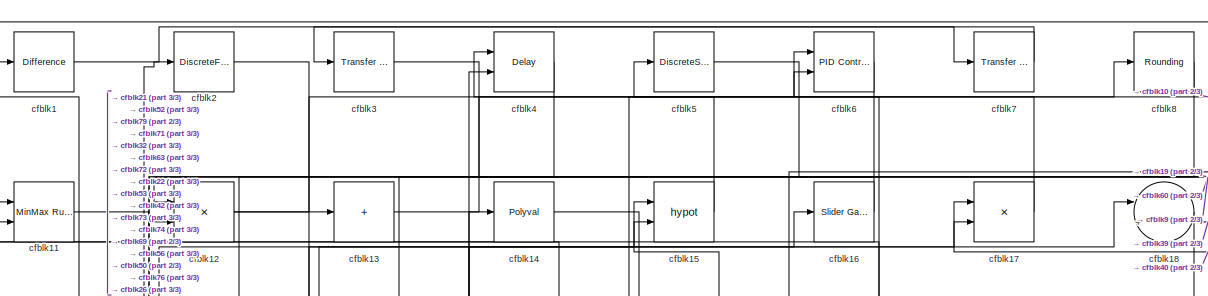
[diagram: root canvas - part 1/3, full width, top band]
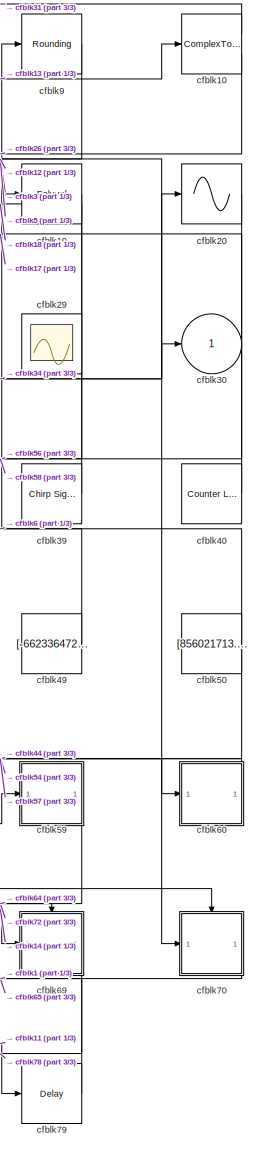
[diagram: root canvas - part 2/3, right side, full height]
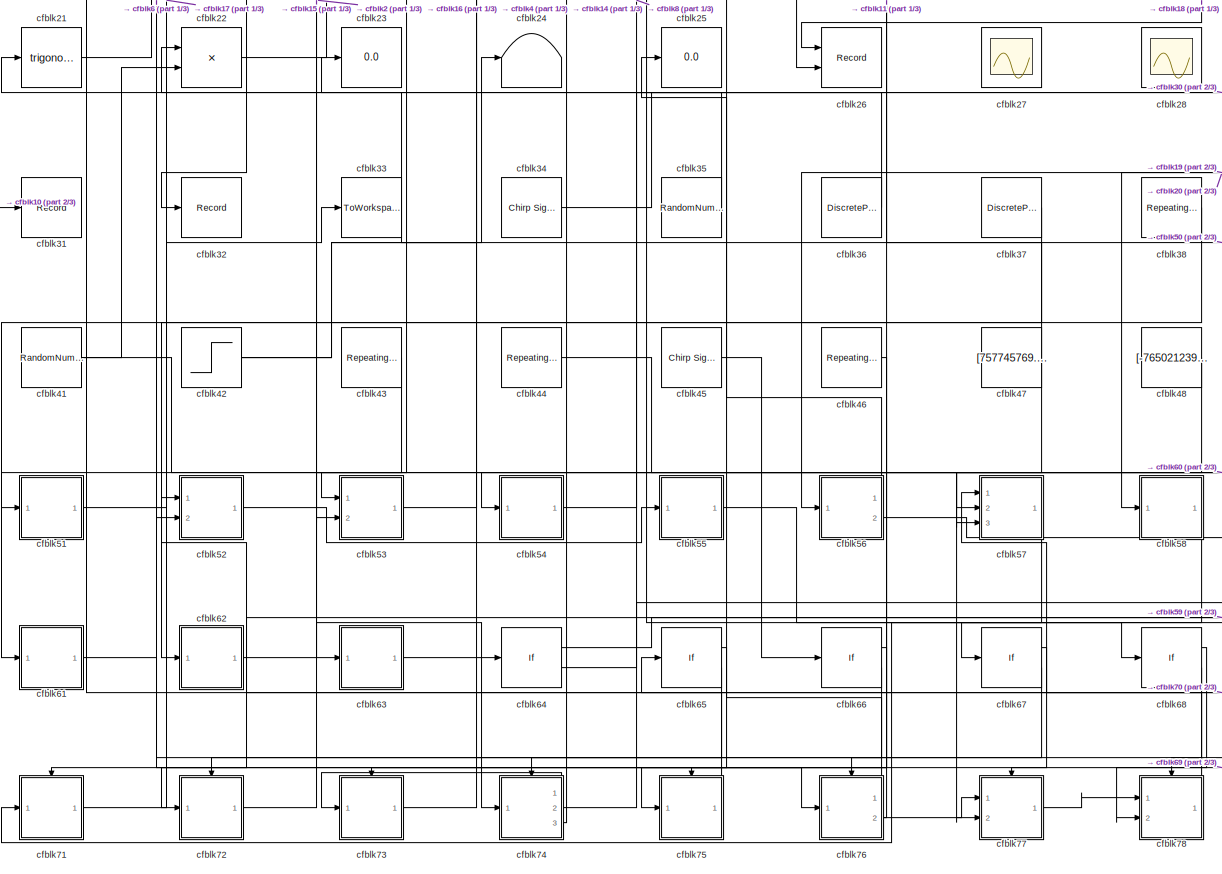
[diagram: root canvas - part 3/3, most of the canvas]
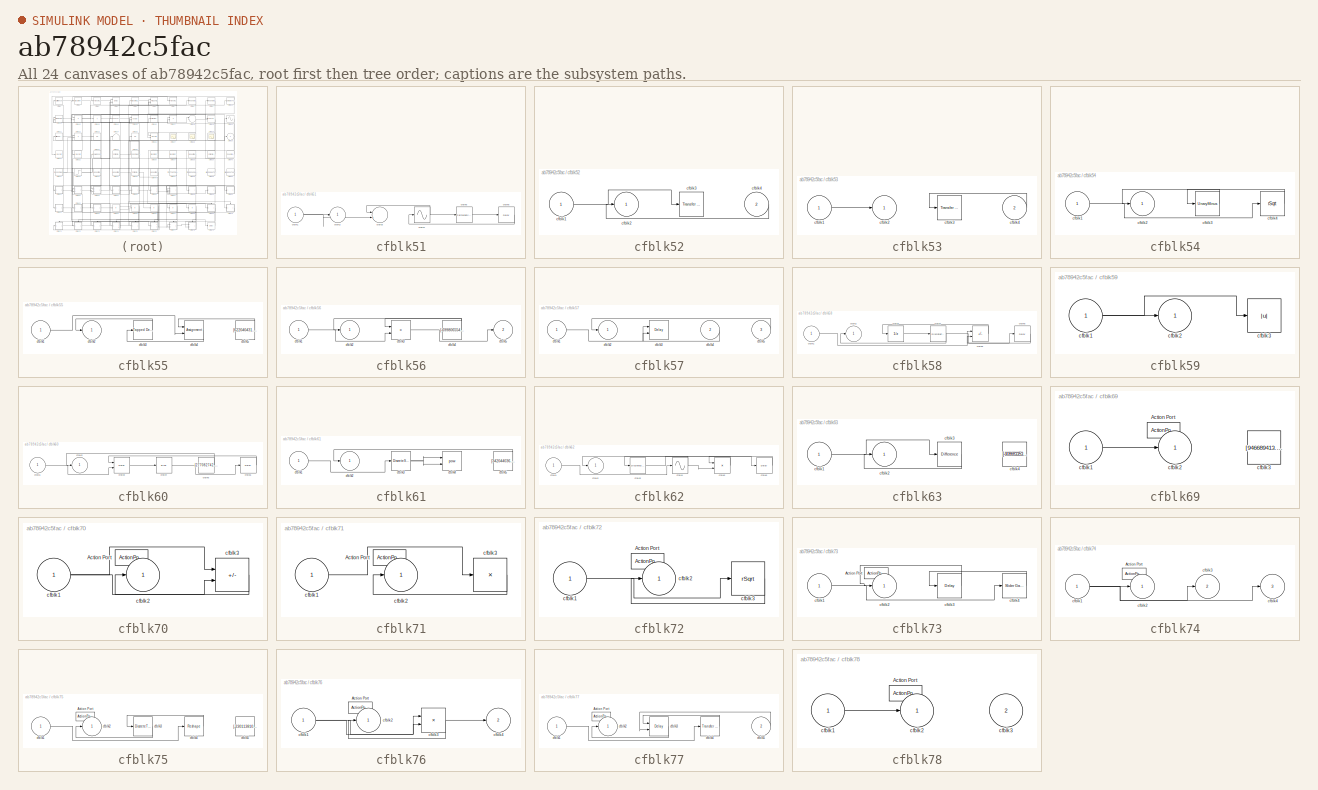
[diagram: thumbnail index - all 24 canvases of the model, root first then tree order]
MODEL slx_ab78942c5fac
KIND model
CONFIG AbsTol = auto
CONFIG EnableMultiTasking = off
CONFIG FixedStep = auto
CONFIG MaxStep = auto
CONFIG MinStep = auto
CONFIG RelTol = 1e-3
CONFIG SampleTimeConstraint = Unconstrained
CONFIG SolverName = VariableStepAuto
CONFIG StartTime = 0.0
CONFIG StopTime = 10.0
BLOCK [Reference] cfblk1  REF=simulink/Discrete/Difference
  Ports = [1, 1]
  SourceBlock = simulink/Discrete/Difference
  SourceProductBaseCode = SL
  SourceType = Difference
BLOCK [ComplexToMagnitudeAngle] cfblk10
  Ports = [1, 2]
BLOCK [Reference] cfblk11  REF=simulink/Math
Operations/MinMax
Running
Resettable
  Ports = [2, 1]
  SourceBlock = simulink/Math\nOperations/MinMax\nRunning\nResettable
  SourceProductBaseCode = SL
  SourceType = MinMax Running Resettable
BLOCK [Product] cfblk12
  Ports = [2, 1]
BLOCK [Sum] cfblk13
  IconShape = rectangular
  Inputs = +
  Ports = [1, 1]
BLOCK [Polyval] cfblk14
  Coefs = [ +2.081618890e-019, -1.441693666e-014, +4.719686976e-010, -8.536869453e-006, +1.621573104e-001, -8.087801117e+001 ]
BLOCK [Math] cfblk15
  Operator = hypot
  Ports = [2, 1]
BLOCK [Reference] cfblk16  REF=simulink/Math
Operations/Slider
Gain
  Ports = [1, 1]
  SourceBlock = simulink/Math\nOperations/Slider\nGain
  SourceProductBaseCode = SL
  SourceType = Slider Gain
BLOCK [Product] cfblk17
  Inputs = **
  Ports = [2, 1]
BLOCK [Sum] cfblk18
  Inputs = |++
  Ports = [2, 1]
BLOCK [Polyval] cfblk19
  Coefs = [ +2.081618890e-019, -1.441693666e-014, +4.719686976e-010, -8.536869453e-006, +1.621573104e-001, -8.087801117e+001 ]
BLOCK [DiscreteFir] cfblk2
  InputPortMap = u0
  OutputPortMap = o0
  Ports = [1, 1]
  SampleTime = 1
BLOCK [Sin] cfblk20
  Ports = [1, 1]
  SampleTime = 0
  TimeSource = Use external signal
BLOCK [Trigonometry] cfblk21
  Ports = [1, 1]
BLOCK [Product] cfblk22
  Ports = [2, 1]
BLOCK [Display] cfblk23
  Decimation = 1
  Ports = [1]
BLOCK [Terminator] cfblk24
BLOCK [Display] cfblk25
  Decimation = 1
  Ports = [1]
BLOCK [Record] cfblk26
  CompatibilityTag = XY
  FileSettingsInternal = {"entries":[{"content":{"excelSettings":{"content":{},"type":"Streamout.ExcelSettings"}},"type":"Streamout.FileSettingStorage","uuid":"1977bd0a-69a2-439d-8604-42371395555f"}],"packageUris":["http://schema.mathworks.com/mf0/streamout_blocks/R2020a"],"version":"1.0"}
  Layout = [1 1]
  Ports = [2]
  SignalsInternal = {"entries":[{"content":{"signals":[{"content":{"blockPath":["sampleModel12/cfblk26"],"channel":[],"dimensions":[1],"domain":"sampleModel12/cfblk26","lineColor":"#a2142f","plots":[1],"port":1,"sid":[""],"signalID":428,"signalName":"cfblk18"},"type":"RecordBlkView.Signal","uuid":"f3019e72-28ea-4570-a652-9e8685cbfb3c"},{"content":{"blockPath":["sampleModel12/cfblk26"],"channel":[],"dimensions":[1],"d...<+379ch>
  VisualizationBindings = {"xyplotplugin":{"info":[{"series":[{"bindingParametersList":[{"parameter":"X-Axis","signalID":428,"signalName":"cfblk18"},{"parameter":"Y-Axis","signalID":432,"signalName":"cfblk10:2"}],"seriesID":23501}],"subplotID":1}]}}
BLOCK [Scope] cfblk27
  Floating = on
  NumInputPorts = 1
  Ports = []
BLOCK [Scope] cfblk28
  Floating = on
  NumInputPorts = 1
  Ports = []
BLOCK [Scope] cfblk29
  Floating = on
  NumInputPorts = 1
  Ports = []
BLOCK [Reference] cfblk3  REF=simulink/Discrete/Transfer Fcn
Real Zero
  Ports = [1, 1]
  SourceBlock = simulink/Discrete/Transfer Fcn\nReal Zero
  SourceProductBaseCode = SL
  SourceType = Transfer Fcn Real Zero
BLOCK [Outport] cfblk30
BLOCK [Record] cfblk31
  FileSettingsInternal = {"entries":[{"content":{"excelSettings":{"content":{},"type":"Streamout.ExcelSettings"}},"type":"Streamout.FileSettingStorage","uuid":"da6b355c-110a-4d9d-8c85-11dfa9378df7"}],"packageUris":["http://schema.mathworks.com/mf0/streamout_blocks/R2020a"],"version":"1.0"}
  Ports = [1]
  SignalsInternal = {"entries":[{"content":{"signals":[{"content":{"blockPath":["sampleModel12/cfblk31"],"channel":[],"dimensions":[1],"domain":"sampleModel12/cfblk31","lineColor":"#edb120","plots":[1],"port":1,"sid":[""],"signalID":436,"signalName":"cfblk10:1"},"type":"RecordBlkView.Signal","uuid":"ae69bb2e-39ac-490d-996f-805b6f004b7c"}]},"type":"RecordBlkView.InputSignals","uuid":"de569a82-f94e-46d9-a337-50138a330f...<+96ch>
  VisualizationBindings = {"sparklinesplugin":{"info":[{"bindingParametersList":[],"subplotID":1}]}}
BLOCK [Record] cfblk32
  FileSettingsInternal = {"entries":[{"content":{"excelSettings":{"content":{},"type":"Streamout.ExcelSettings"}},"type":"Streamout.FileSettingStorage","uuid":"c9f7d570-c88d-4228-83d0-ca59f7ab4bdd"}],"packageUris":["http://schema.mathworks.com/mf0/streamout_blocks/R2020a"],"version":"1.0"}
  Ports = [1]
  SignalsInternal = {"entries":[{"content":{"signals":[{"content":{"blockPath":["sampleModel12/cfblk32"],"channel":[],"dimensions":[1],"domain":"sampleModel12/cfblk32","lineColor":"#7e2f8e","plots":[1],"port":1,"sid":[""],"signalID":440,"signalName":"cfblk8"},"type":"RecordBlkView.Signal","uuid":"cca8ab52-b53e-444e-b4d0-924eaea725a7"}]},"type":"RecordBlkView.InputSignals","uuid":"2acedad1-730a-4821-a658-abd68721b299"...<+93ch>
  VisualizationBindings = {"sparklinesplugin":{"info":[{"bindingParametersList":[],"subplotID":1}]}}
BLOCK [ToWorkspace] cfblk33
  FixptAsFi = on
  MaxDataPoints = inf
  Ports = [1]
  SampleTime = -1
  SaveFormat = Timeseries
  VariableName = excipmu
BLOCK [Reference] cfblk34  REF=simulink/Sources/Chirp Signal
  Ports = [0, 1]
  SourceBlock = simulink/Sources/Chirp Signal
  SourceProductBaseCode = SL
  SourceType = chirp
BLOCK [RandomNumber] cfblk35
  Mean = [-70273.489359]
  SampleTime = 0.1
  Seed = [633982548.000000]
  Variance = [65811.618122]
BLOCK [DiscretePulseGenerator] cfblk36
  Amplitude = [-541387497.068457]
  Period = [18222802.345042]
  PhaseDelay = [2.000000]
  Ports = [0, 1]
  PulseType = Time based
  PulseWidth = 5
BLOCK [DiscretePulseGenerator] cfblk37
  Amplitude = [-700785816.762518]
  Period = [20274740.571512]
  PhaseDelay = [9.000000]
  Ports = [0, 1]
  PulseType = Time based
  PulseWidth = 5
BLOCK [Reference] cfblk38  REF=simulink/Sources/Repeating
Sequence
  Ports = [0, 1]
  SourceBlock = simulink/Sources/Repeating\nSequence
  SourceProductBaseCode = SL
  SourceType = Repeating table
BLOCK [Reference] cfblk39  REF=simulink/Sources/Chirp Signal
  Ports = [0, 1]
  SourceBlock = simulink/Sources/Chirp Signal
  SourceProductBaseCode = SL
  SourceType = chirp
BLOCK [Delay] cfblk4
  InputPortMap = u0,e6
  Ports = [2, 1]
  SampleTime = 1
  ShowEnablePort = on
BLOCK [Reference] cfblk40  REF=simulink/Sources/Counter
Limited
  Ports = [0, 1]
  SourceBlock = simulink/Sources/Counter\nLimited
  SourceProductBaseCode = SL
  SourceType = Counter Limited
BLOCK [RandomNumber] cfblk41
  Mean = [72467.842296]
  SampleTime = 0.1
  Seed = [189010556.000000]
  Variance = [89640.490346]
BLOCK [Step] cfblk42
  After = [951414251.341264]
  Before = [882461875.746971]
  SampleTime = 0
  Time = [33.000000]
BLOCK [Reference] cfblk43  REF=simulink/Sources/Repeating
Sequence
Stair
  Ports = [0, 1]
  SourceBlock = simulink/Sources/Repeating\nSequence\nStair
  SourceProductBaseCode = SL
  SourceType = Repeating Sequence Stair
BLOCK [Reference] cfblk44  REF=simulink/Sources/Repeating
Sequence
Stair
  Ports = [0, 1]
  SourceBlock = simulink/Sources/Repeating\nSequence\nStair
  SourceProductBaseCode = SL
  SourceType = Repeating Sequence Stair
BLOCK [Reference] cfblk45  REF=simulink/Sources/Chirp Signal
  Ports = [0, 1]
  SourceBlock = simulink/Sources/Chirp Signal
  SourceProductBaseCode = SL
  SourceType = chirp
BLOCK [Reference] cfblk46  REF=simulink/Sources/Repeating
Sequence
Interpolated
  Ports = [0, 1]
  SourceBlock = simulink/Sources/Repeating\nSequence\nInterpolated
  SourceProductBaseCode = SL
  SourceType = Repeating Sequence Interpolated
BLOCK [Constant] cfblk47
  SampleTime = 1
  Value = [757745769.277047]
BLOCK [Constant] cfblk48
  SampleTime = 1
  Value = [-765021239.602186]
BLOCK [Constant] cfblk49
  SampleTime = 1
  Value = [-662336472.081228]
BLOCK [DiscreteStateSpace] cfblk5
BLOCK [Constant] cfblk50
  SampleTime = 1
  Value = [856021713.477478]
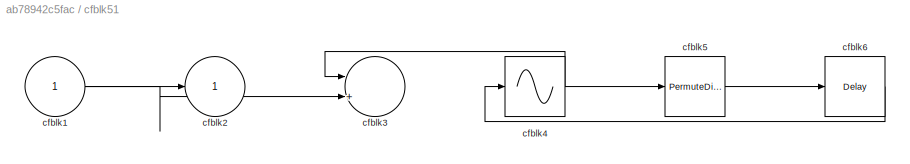
BLOCK [SubSystem] cfblk51
  Ports = [1, 1]
  RequestExecContextInheritance = off
BLOCK [Inport] cfblk51/cfblk1
BLOCK [Outport] cfblk51/cfblk2
BLOCK [Sum] cfblk51/cfblk3
  Inputs = |++
  Ports = [2, 1]
BLOCK [Sin] cfblk51/cfblk4
  Ports = [1, 1]
  SampleTime = 0
  TimeSource = Use external signal
BLOCK [PermuteDimensions] cfblk51/cfblk5
BLOCK [Delay] cfblk51/cfblk6
  InputPortMap = u0
  Ports = [1, 1]
  SampleTime = 1
BLOCK [SubSystem] cfblk52
  Ports = [2, 1]
  RequestExecContextInheritance = off
BLOCK [Inport] cfblk52/cfblk1
BLOCK [Outport] cfblk52/cfblk2
BLOCK [Reference] cfblk52/cfblk3  REF=simulink/Discrete/Transfer Fcn
First Order
  Ports = [1, 1]
  SourceBlock = simulink/Discrete/Transfer Fcn\nFirst Order
  SourceProductBaseCode = SL
  SourceType = First Order Transfer Fcn
BLOCK [Inport] cfblk52/cfblk4
  Port = 2
BLOCK [SubSystem] cfblk53
  Ports = [2, 1]
  RequestExecContextInheritance = off
BLOCK [Inport] cfblk53/cfblk1
BLOCK [Outport] cfblk53/cfblk2
BLOCK [Reference] cfblk53/cfblk3  REF=simulink/Discrete/Transfer Fcn
First Order
  Ports = [1, 1]
  SourceBlock = simulink/Discrete/Transfer Fcn\nFirst Order
  SourceProductBaseCode = SL
  SourceType = First Order Transfer Fcn
BLOCK [Inport] cfblk53/cfblk4
  Port = 2
BLOCK [SubSystem] cfblk54
  Ports = [1, 1]
  RequestExecContextInheritance = off
BLOCK [Inport] cfblk54/cfblk1
BLOCK [Outport] cfblk54/cfblk2
BLOCK [UnaryMinus] cfblk54/cfblk3
BLOCK [Sqrt] cfblk54/cfblk4
  AlgorithmType = Newton-Raphson
  Operator = rSqrt
BLOCK [SubSystem] cfblk55
  Ports = [1, 1]
  RequestExecContextInheritance = off
BLOCK [Inport] cfblk55/cfblk1
BLOCK [Outport] cfblk55/cfblk2
BLOCK [Reference] cfblk55/cfblk3  REF=simulink/Discrete/Tapped Delay
  Ports = [1, 1]
  SourceBlock = simulink/Discrete/Tapped Delay
  SourceProductBaseCode = SL
  SourceType = Tapped Delay Line
BLOCK [Assignment] cfblk55/cfblk4
  DiagnosticForDimensions = Warning
  IndexOptions = Index vector (dialog)
  Indices = 1
  OutputSizes = 1
  Ports = [2, 1]
BLOCK [Constant] cfblk55/cfblk5
  SampleTime = 1
  Value = [622040431.232919]
BLOCK [SubSystem] cfblk56
  Ports = [1, 2]
  RequestExecContextInheritance = off
BLOCK [Inport] cfblk56/cfblk1
BLOCK [Outport] cfblk56/cfblk2
BLOCK [Product] cfblk56/cfblk3
  Inputs = **
  Ports = [2, 1]
BLOCK [Constant] cfblk56/cfblk4
  SampleTime = 1
  Value = [-699806554.674733]
BLOCK [Outport] cfblk56/cfblk5
  Port = 2
BLOCK [SubSystem] cfblk57
  Ports = [3, 1]
  RequestExecContextInheritance = off
BLOCK [Inport] cfblk57/cfblk1
BLOCK [Outport] cfblk57/cfblk2
BLOCK [Delay] cfblk57/cfblk3
  DelayLengthSource = Input port
  InputPortMap = u0,p1
  Ports = [2, 1]
  SampleTime = 1
BLOCK [Inport] cfblk57/cfblk4
  Port = 2
BLOCK [Inport] cfblk57/cfblk5
  Port = 3
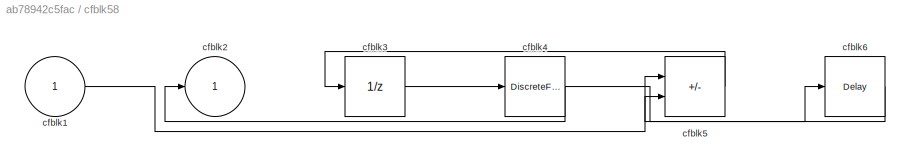
BLOCK [SubSystem] cfblk58
  Ports = [1, 1]
  RequestExecContextInheritance = off
BLOCK [Inport] cfblk58/cfblk1
BLOCK [Outport] cfblk58/cfblk2
BLOCK [UnitDelay] cfblk58/cfblk3
  HasFrameUpgradeWarning = on
BLOCK [DiscreteFilter] cfblk58/cfblk4
  InputPortMap = u0
  Ports = [1, 1]
  SampleTime = 1
BLOCK [Sum] cfblk58/cfblk5
  IconShape = rectangular
  Inputs = +-
  Ports = [2, 1]
BLOCK [Delay] cfblk58/cfblk6
  InputPortMap = u0
  Ports = [1, 1]
  SampleTime = 1
BLOCK [SubSystem] cfblk59
  Ports = [1, 1]
  RequestExecContextInheritance = off
BLOCK [Inport] cfblk59/cfblk1
BLOCK [Outport] cfblk59/cfblk2
BLOCK [Abs] cfblk59/cfblk3
  SaturateOnIntegerOverflow = off
BLOCK [Reference] cfblk6  REF=slpidlib/PID Controller (2DOF)
  Ports = [2, 1]
  SourceBlock = slpidlib/PID Controller (2DOF)
  SourceProductBaseCode = SL
  SourceType = PID 2dof
BLOCK [SubSystem] cfblk60
  Ports = [1, 1]
  RequestExecContextInheritance = off
BLOCK [Inport] cfblk60/cfblk1
BLOCK [Outport] cfblk60/cfblk2
BLOCK [Delay] cfblk60/cfblk3
  DelayLengthSource = Input port
  InputPortMap = u0,p1
  Ports = [2, 1]
  SampleTime = 1
BLOCK [Bias] cfblk60/cfblk4
  Bias = [486427548.401634]
  SaturateOnIntegerOverflow = off
BLOCK [Constant] cfblk60/cfblk5
  SampleTime = 1
  Value = [277082742.678842]
BLOCK [Delay] cfblk60/cfblk6
  InputPortMap = u0
  Ports = [1, 1]
  SampleTime = 1
BLOCK [SubSystem] cfblk61
  Ports = [1, 1]
  RequestExecContextInheritance = off
BLOCK [Inport] cfblk61/cfblk1
BLOCK [Outport] cfblk61/cfblk2
BLOCK [DiscreteStateSpace] cfblk61/cfblk3
BLOCK [Math] cfblk61/cfblk4
  Operator = pow
  Ports = [2, 1]
BLOCK [Constant] cfblk61/cfblk5
  SampleTime = 1
  Value = [342044036.566696]
BLOCK [SubSystem] cfblk62
  Ports = [1, 1]
  RequestExecContextInheritance = off
BLOCK [Inport] cfblk62/cfblk1
BLOCK [Outport] cfblk62/cfblk2
BLOCK [DiscreteStateSpace] cfblk62/cfblk3
BLOCK [Sin] cfblk62/cfblk4
  Ports = [1, 1]
  SampleTime = 0
  TimeSource = Use external signal
BLOCK [Product] cfblk62/cfblk5
  Ports = [2, 1]
BLOCK [Delay] cfblk62/cfblk6
  InputPortMap = u0
  Ports = [1, 1]
  SampleTime = 1
BLOCK [SubSystem] cfblk63
  Ports = [1, 1]
  RequestExecContextInheritance = off
BLOCK [Inport] cfblk63/cfblk1
BLOCK [Outport] cfblk63/cfblk2
BLOCK [Reference] cfblk63/cfblk3  REF=simulink/Discrete/Difference
  Ports = [1, 1]
  SourceBlock = simulink/Discrete/Difference
  SourceProductBaseCode = SL
  SourceType = Difference
BLOCK [Constant] cfblk63/cfblk4
  SampleTime = 1
  Value = [-908683353.045234]
BLOCK [If] cfblk64
  IfExpression = u1 >= 0
  Ports = [1, 2]
  SampleTime = 1
BLOCK [If] cfblk65
  IfExpression = u1 >= 0
  Ports = [1, 2]
  SampleTime = 1
BLOCK [If] cfblk66
  IfExpression = u1 >= 0
  Ports = [1, 2]
  SampleTime = 1
BLOCK [If] cfblk67
  IfExpression = u1 >= 0
  Ports = [1, 2]
  SampleTime = 1
BLOCK [If] cfblk68
  IfExpression = u1 >= 0
  Ports = [1, 2]
  SampleTime = 1
BLOCK [SubSystem] cfblk69
  Ports = [1, 1, 0, 0, 0, 0, 0, 1]
  RequestExecContextInheritance = off
  TreatAsAtomicUnit = on
BLOCK [ActionPort] cfblk69/Action Port
  ActionPortLabel = if(u1 >= 0)
BLOCK [Inport] cfblk69/cfblk1
BLOCK [Outport] cfblk69/cfblk2
BLOCK [Constant] cfblk69/cfblk3
  SampleTime = 1
  Value = [946689413.441740]
BLOCK [Reference] cfblk7  REF=simulink/Discrete/Transfer Fcn
First Order
  Ports = [1, 1]
  SourceBlock = simulink/Discrete/Transfer Fcn\nFirst Order
  SourceProductBaseCode = SL
  SourceType = First Order Transfer Fcn
BLOCK [SubSystem] cfblk70
  Ports = [1, 1, 0, 0, 0, 0, 0, 1]
  RequestExecContextInheritance = off
  TreatAsAtomicUnit = on
BLOCK [ActionPort] cfblk70/Action Port
  ActionPortLabel = else
BLOCK [Inport] cfblk70/cfblk1
BLOCK [Outport] cfblk70/cfblk2
BLOCK [Sum] cfblk70/cfblk3
  IconShape = rectangular
  Inputs = --
  Ports = [2, 1]
BLOCK [SubSystem] cfblk71
  Ports = [1, 1, 0, 0, 0, 0, 0, 1]
  RequestExecContextInheritance = off
  TreatAsAtomicUnit = on
BLOCK [ActionPort] cfblk71/Action Port
  ActionPortLabel = if(u1 >= 0)
BLOCK [Inport] cfblk71/cfblk1
BLOCK [Outport] cfblk71/cfblk2
BLOCK [Product] cfblk71/cfblk3
  Inputs = *
  Ports = [1, 1]
BLOCK [SubSystem] cfblk72
  Ports = [1, 1, 0, 0, 0, 0, 0, 1]
  RequestExecContextInheritance = off
  TreatAsAtomicUnit = on
BLOCK [ActionPort] cfblk72/Action Port
  ActionPortLabel = else
BLOCK [Inport] cfblk72/cfblk1
BLOCK [Outport] cfblk72/cfblk2
BLOCK [Sqrt] cfblk72/cfblk3
  AlgorithmType = Newton-Raphson
  Operator = rSqrt
BLOCK [SubSystem] cfblk73
  Ports = [1, 1, 0, 0, 0, 0, 0, 1]
  RequestExecContextInheritance = off
  TreatAsAtomicUnit = on
BLOCK [ActionPort] cfblk73/Action Port
  ActionPortLabel = if(u1 >= 0)
BLOCK [Inport] cfblk73/cfblk1
BLOCK [Outport] cfblk73/cfblk2
BLOCK [Delay] cfblk73/cfblk3
  InputPortMap = u0
  Ports = [1, 1]
BLOCK [Reference] cfblk73/cfblk4  REF=simulink/Math
Operations/Slider
Gain
  Ports = [1, 1]
  SourceBlock = simulink/Math\nOperations/Slider\nGain
  SourceProductBaseCode = SL
  SourceType = Slider Gain
BLOCK [SubSystem] cfblk74
  Ports = [1, 3, 0, 0, 0, 0, 0, 1]
  RequestExecContextInheritance = off
  TreatAsAtomicUnit = on
BLOCK [ActionPort] cfblk74/Action Port
  ActionPortLabel = else
BLOCK [Inport] cfblk74/cfblk1
BLOCK [Outport] cfblk74/cfblk2
BLOCK [Outport] cfblk74/cfblk3
  Port = 2
BLOCK [Outport] cfblk74/cfblk4
  Port = 3
BLOCK [SubSystem] cfblk75
  Ports = [1, 1, 0, 0, 0, 0, 0, 1]
  RequestExecContextInheritance = off
  TreatAsAtomicUnit = on
BLOCK [ActionPort] cfblk75/Action Port
  ActionPortLabel = if(u1 >= 0)
BLOCK [Inport] cfblk75/cfblk1
BLOCK [Outport] cfblk75/cfblk2
BLOCK [DiscreteTransferFcn] cfblk75/cfblk3
  InputPortMap = u0
  Ports = [1, 1]
BLOCK [Reshape] cfblk75/cfblk4
  Ports = [1, 1]
BLOCK [Constant] cfblk75/cfblk5
  SampleTime = 1
  Value = [-230113810.064252]
BLOCK [SubSystem] cfblk76
  Ports = [1, 2, 0, 0, 0, 0, 0, 1]
  RequestExecContextInheritance = off
  TreatAsAtomicUnit = on
BLOCK [ActionPort] cfblk76/Action Port
  ActionPortLabel = else
BLOCK [Inport] cfblk76/cfblk1
BLOCK [Outport] cfblk76/cfblk2
BLOCK [Product] cfblk76/cfblk3
  Inputs = **
  Ports = [2, 1]
BLOCK [Outport] cfblk76/cfblk4
  Port = 2
BLOCK [SubSystem] cfblk77
  Ports = [2, 1, 0, 0, 0, 0, 0, 1]
  RequestExecContextInheritance = off
  TreatAsAtomicUnit = on
BLOCK [ActionPort] cfblk77/Action Port
  ActionPortLabel = if(u1 >= 0)
BLOCK [Inport] cfblk77/cfblk1
BLOCK [Outport] cfblk77/cfblk2
BLOCK [Delay] cfblk77/cfblk3
  DelayLengthSource = Input port
  InputPortMap = u0,p1
  Ports = [2, 1]
BLOCK [Reference] cfblk77/cfblk4  REF=simulink/Discrete/Transfer Fcn
First Order
  Ports = [1, 1]
  SourceBlock = simulink/Discrete/Transfer Fcn\nFirst Order
  SourceProductBaseCode = SL
  SourceType = First Order Transfer Fcn
BLOCK [Inport] cfblk77/cfblk5
  Port = 2
BLOCK [SubSystem] cfblk78
  Ports = [2, 1, 0, 0, 0, 0, 0, 1]
  RequestExecContextInheritance = off
  TreatAsAtomicUnit = on
BLOCK [ActionPort] cfblk78/Action Port
  ActionPortLabel = else
BLOCK [Inport] cfblk78/cfblk1
BLOCK [Outport] cfblk78/cfblk2
BLOCK [Inport] cfblk78/cfblk3
  Port = 2
BLOCK [Delay] cfblk79
  InputPortMap = u0
  Ports = [1, 1]
  SampleTime = 1
BLOCK [Rounding] cfblk8
BLOCK [Rounding] cfblk9
LINE cfblk10:1 -> cfblk31:1
LINE cfblk10:2 -> cfblk26:2
LINE cfblk11:1 -> cfblk79:1
NET cfblk12:1 -> cfblk13:1, cfblk6:2
LINE cfblk13:1 -> cfblk10:1
LINE cfblk14:1 -> cfblk69:1
LINE cfblk15:1 -> cfblk4:1
LINE cfblk16:1 -> cfblk12:1
LINE cfblk17:1 -> cfblk5:1
LINE cfblk18:1 -> cfblk26:1
LINE cfblk19:1 -> cfblk58:1
LINE cfblk1:1 -> cfblk7:1
LINE cfblk20:1 -> cfblk56:1
LINE cfblk21:1 -> cfblk2:1
LINE cfblk22:1 -> cfblk16:1
LINE cfblk2:1 -> cfblk63:1
LINE cfblk34:1 -> cfblk20:1
LINE cfblk35:1 -> cfblk22:1
LINE cfblk36:1 -> cfblk21:1
LINE cfblk37:1 -> cfblk51:1
LINE cfblk38:1 -> cfblk62:1
LINE cfblk39:1 -> cfblk18:2
LINE cfblk3:1 -> cfblk19:1
LINE cfblk40:1 -> cfblk17:2
NET cfblk41:1 -> cfblk22:2, cfblk77:2
NET cfblk42:1 -> cfblk24:1, cfblk4:2
LINE cfblk43:1 -> cfblk61:1
LINE cfblk44:1 -> cfblk70:1
LINE cfblk45:1 -> cfblk66:1
LINE cfblk46:1 -> cfblk75:1
NET cfblk47:1 -> cfblk23:1, cfblk57:3
LINE cfblk48:1 -> cfblk53:2
LINE cfblk49:1 -> cfblk9:1
LINE cfblk4:1 -> cfblk53:1
NET cfblk50:1 -> cfblk57:2, cfblk6:1
NET cfblk51/cfblk1:1 -> cfblk51/cfblk2:1, cfblk51/cfblk3:2
NET cfblk51/cfblk4:1 -> cfblk51/cfblk3:1, cfblk51/cfblk5:1
LINE cfblk51/cfblk5:1 -> cfblk51/cfblk6:1
LINE cfblk51/cfblk6:1 -> cfblk51/cfblk4:1
LINE cfblk51:1 -> cfblk33:1
LINE cfblk52/cfblk1:1 -> cfblk52/cfblk3:1
LINE cfblk52/cfblk4:1 -> cfblk52/cfblk2:1
LINE cfblk52:1 -> cfblk55:1
LINE cfblk53/cfblk1:1 -> cfblk53/cfblk2:1
LINE cfblk53/cfblk4:1 -> cfblk53/cfblk3:1
LINE cfblk53:1 -> cfblk14:1
LINE cfblk54/cfblk1:1 -> cfblk54/cfblk4:1
LINE cfblk54/cfblk3:1 -> cfblk54/cfblk2:1
LINE cfblk54/cfblk4:1 -> cfblk54/cfblk3:1
LINE cfblk54:1 -> cfblk30:1
LINE cfblk55/cfblk1:1 -> cfblk55/cfblk4:2
LINE cfblk55/cfblk3:1 -> cfblk55/cfblk2:1
LINE cfblk55/cfblk4:1 -> cfblk55/cfblk3:1
LINE cfblk55/cfblk5:1 -> cfblk55/cfblk4:1
LINE cfblk55:1 -> cfblk68:1
LINE cfblk56/cfblk1:1 -> cfblk56/cfblk3:2
LINE cfblk56/cfblk3:1 -> cfblk56/cfblk5:1
NET cfblk56/cfblk4:1 -> cfblk56/cfblk2:1, cfblk56/cfblk3:1
LINE cfblk56:1 -> cfblk15:2
LINE cfblk56:2 -> cfblk59:1
LINE cfblk57/cfblk1:1 -> cfblk57/cfblk3:1
LINE cfblk57/cfblk4:1 -> cfblk57/cfblk3:2
LINE cfblk57/cfblk5:1 -> cfblk57/cfblk2:1
LINE cfblk57:1 -> cfblk71:1
LINE cfblk58/cfblk1:1 -> cfblk58/cfblk5:1
LINE cfblk58/cfblk3:1 -> cfblk58/cfblk4:1
NET cfblk58/cfblk4:1 -> cfblk58/cfblk2:1, cfblk58/cfblk6:1
LINE cfblk58/cfblk5:1 -> cfblk58/cfblk3:1
LINE cfblk58/cfblk6:1 -> cfblk58/cfblk5:2
LINE cfblk58:1 -> cfblk67:1
NET cfblk59/cfblk1:1 -> cfblk59/cfblk2:1, cfblk59/cfblk3:1
LINE cfblk59:1 -> cfblk72:1
LINE cfblk5:1 -> cfblk60:1
LINE cfblk60/cfblk1:1 -> cfblk60/cfblk3:2
LINE cfblk60/cfblk3:1 -> cfblk60/cfblk4:1
LINE cfblk60/cfblk4:1 -> cfblk60/cfblk6:1
LINE cfblk60/cfblk5:1 -> cfblk60/cfblk2:1
LINE cfblk60/cfblk6:1 -> cfblk60/cfblk3:1
LINE cfblk60:1 -> cfblk54:1
LINE cfblk61/cfblk1:1 -> cfblk61/cfblk3:1
NET cfblk61/cfblk3:1 -> cfblk61/cfblk4:1, cfblk61/cfblk4:2
LINE cfblk61/cfblk5:1 -> cfblk61/cfblk2:1
LINE cfblk61:1 -> cfblk76:1
LINE cfblk62/cfblk1:1 -> cfblk62/cfblk4:1
LINE cfblk62/cfblk3:1 -> cfblk62/cfblk6:1
NET cfblk62/cfblk4:1 -> cfblk62/cfblk2:1, cfblk62/cfblk5:2
LINE cfblk62/cfblk5:1 -> cfblk62/cfblk3:1
LINE cfblk62/cfblk6:1 -> cfblk62/cfblk5:1
LINE cfblk62:1 -> cfblk64:1
LINE cfblk63/cfblk1:1 -> cfblk63/cfblk3:1
LINE cfblk63/cfblk3:1 -> cfblk63/cfblk2:1
LINE cfblk63:1 -> cfblk74:1
LINE cfblk64:1 -> cfblk69:ifaction
LINE cfblk64:2 -> cfblk70:ifaction
LINE cfblk65:1 -> cfblk71:ifaction
LINE cfblk65:2 -> cfblk72:ifaction
LINE cfblk66:1 -> cfblk73:ifaction
LINE cfblk66:2 -> cfblk74:ifaction
LINE cfblk67:1 -> cfblk75:ifaction
LINE cfblk67:2 -> cfblk76:ifaction
LINE cfblk68:1 -> cfblk77:ifaction
LINE cfblk68:2 -> cfblk78:ifaction
LINE cfblk69/cfblk1:1 -> cfblk69/cfblk2:1
LINE cfblk69:1 -> cfblk78:2
LINE cfblk6:1 -> cfblk52:2
NET cfblk70/cfblk1:1 -> cfblk70/cfblk3:1, cfblk70/cfblk3:2
LINE cfblk70/cfblk3:1 -> cfblk70/cfblk2:1
LINE cfblk70:1 -> cfblk65:1
LINE cfblk71/cfblk1:1 -> cfblk71/cfblk3:1
LINE cfblk71/cfblk3:1 -> cfblk71/cfblk2:1
LINE cfblk71:1 -> cfblk17:1
LINE cfblk72/cfblk1:1 -> cfblk72/cfblk3:1
LINE cfblk72/cfblk3:1 -> cfblk72/cfblk2:1
LINE cfblk72:1 -> cfblk15:1
LINE cfblk73/cfblk1:1 -> cfblk73/cfblk4:1
LINE cfblk73/cfblk3:1 -> cfblk73/cfblk2:1
LINE cfblk73/cfblk4:1 -> cfblk73/cfblk3:1
LINE cfblk73:1 -> cfblk18:1
NET cfblk74/cfblk1:1 -> cfblk74/cfblk2:1, cfblk74/cfblk3:1, cfblk74/cfblk4:1
LINE cfblk74:1 -> cfblk73:1
LINE cfblk74:2 -> cfblk8:1
LINE cfblk74:3 -> cfblk11:1
LINE cfblk75/cfblk1:1 -> cfblk75/cfblk4:1
LINE cfblk75/cfblk3:1 -> cfblk75/cfblk2:1
LINE cfblk75/cfblk4:1 -> cfblk75/cfblk3:1
LINE cfblk75:1 -> cfblk52:1
NET cfblk76/cfblk1:1 -> cfblk76/cfblk3:1, cfblk76/cfblk3:2
NET cfblk76/cfblk3:1 -> cfblk76/cfblk2:1, cfblk76/cfblk4:1
LINE cfblk76:1 -> cfblk25:1
NET cfblk76:2 -> cfblk11:2, cfblk77:1
LINE cfblk77/cfblk1:1 -> cfblk77/cfblk4:1
LINE cfblk77/cfblk3:1 -> cfblk77/cfblk2:1
LINE cfblk77/cfblk4:1 -> cfblk77/cfblk3:1
LINE cfblk77/cfblk5:1 -> cfblk77/cfblk3:2
LINE cfblk77:1 -> cfblk78:1
LINE cfblk78/cfblk1:1 -> cfblk78/cfblk2:1
LINE cfblk78:1 -> cfblk57:1
LINE cfblk79:1 -> cfblk1:1
LINE cfblk7:1 -> cfblk3:1
LINE cfblk8:1 -> cfblk32:1
LINE cfblk9:1 -> cfblk12:2
note: NET lines group one-source signal fan-out (src -> all destinations, sorted); 1:1 wires keep LINE
